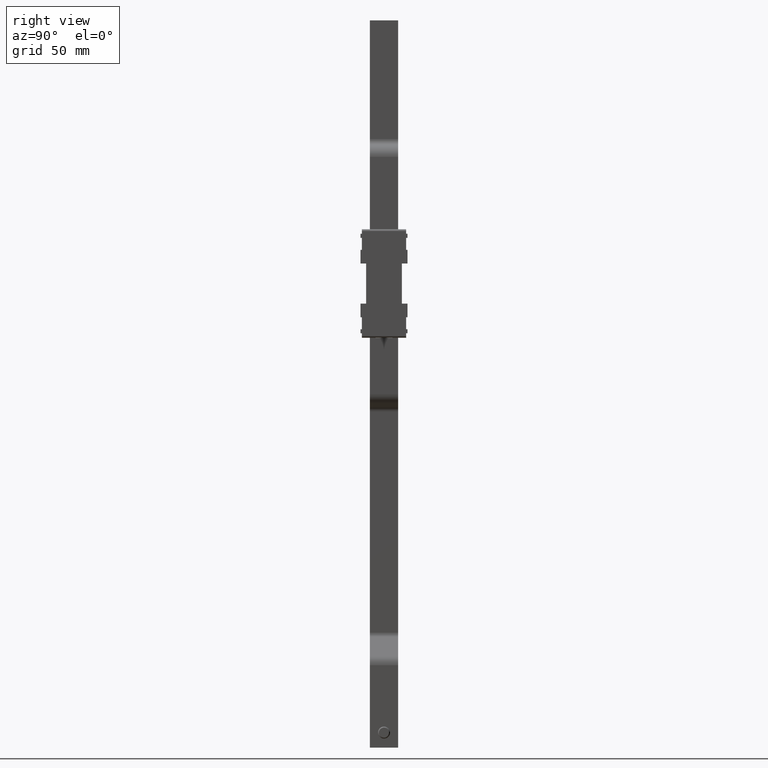
[diagram: clean part render]
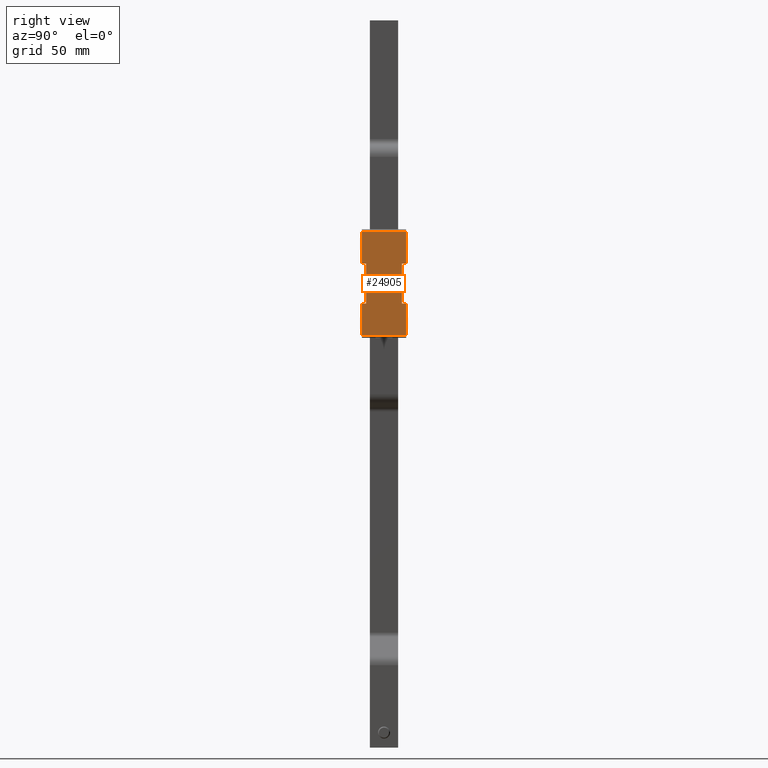
[diagram: same view with one face highlighted and labeled with its STEP entity id]
A machine part, right view. The second image highlights one B-rep face of the part: STEP entity #24905.
In plain terms, the highlighted face is a freeform B-spline surface patch.
Its self-contained STEP definition (entity closure, byte-faithful):
#22180=CARTESIAN_POINT('',(13.500000641205800,11.000000522472080,10.000000474974801));
#22181=VERTEX_POINT('',#22180);
#22187=CARTESIAN_POINT('',(13.500000641205800,8.900000422727320,10.000000474974801));
#22188=VERTEX_POINT('',#22187);
#22189=CARTESIAN_POINT('',(13.500000641205800,8.900000422727320,10.000000474974801));
#22190=CARTESIAN_POINT('',(13.500000641205800,11.000000522472080,10.000000474974801));
#22191=QUASI_UNIFORM_CURVE('',1,(#22189,#22190),.UNSPECIFIED.,.F.,.U.);
#22192=EDGE_CURVE('',#22188,#22181,#22191,.T.);
#22268=CARTESIAN_POINT('',(13.500000641205800,8.900000422727320,-10.000000474974801));
#22269=VERTEX_POINT('',#22268);
#22275=CARTESIAN_POINT('',(13.500000641205800,11.000000522472060,-10.000000474974801));
#22276=VERTEX_POINT('',#22275);
#22277=CARTESIAN_POINT('',(13.500000641205800,8.900000422727320,-10.000000474974801));
#22278=CARTESIAN_POINT('',(13.500000641205800,11.000000522472060,-10.000000474974801));
#22279=QUASI_UNIFORM_CURVE('',1,(#22277,#22278),.UNSPECIFIED.,.F.,.U.);
#22280=EDGE_CURVE('',#22269,#22276,#22279,.T.);
#23840=CARTESIAN_POINT('',(13.500000641205800,-8.900000422727320,10.000000474974801));
#23841=VERTEX_POINT('',#23840);
#23847=CARTESIAN_POINT('',(13.500000641205800,-11.000000522472080,10.000000474974801));
#23848=VERTEX_POINT('',#23847);
#23849=CARTESIAN_POINT('',(13.500000641205800,-8.900000422727320,10.000000474974801));
#23850=CARTESIAN_POINT('',(13.500000641205800,-11.000000522472080,10.000000474974801));
#23851=QUASI_UNIFORM_CURVE('',1,(#23849,#23850),.UNSPECIFIED.,.F.,.U.);
#23852=EDGE_CURVE('',#23841,#23848,#23851,.T.);
#23934=CARTESIAN_POINT('',(13.500000641205800,-11.000000522472080,-10.000000474974801));
#23935=VERTEX_POINT('',#23934);
#23941=CARTESIAN_POINT('',(13.500000641205800,-8.900000422727320,-10.000000474974801));
#23942=VERTEX_POINT('',#23941);
#23943=CARTESIAN_POINT('',(13.500000641205800,-8.900000422727320,-10.000000474974801));
#23944=CARTESIAN_POINT('',(13.500000641205800,-11.000000522472080,-10.000000474974801));
#23945=QUASI_UNIFORM_CURVE('',1,(#23943,#23944),.UNSPECIFIED.,.F.,.U.);
#23946=EDGE_CURVE('',#23942,#23935,#23945,.T.);
#24448=CARTESIAN_POINT('',(13.500000641205800,-11.000000522471961,26.000001234933951));
#24449=VERTEX_POINT('',#24448);
#24465=CARTESIAN_POINT('',(13.500000641205800,11.000000522472080,26.000001234933951));
#24466=VERTEX_POINT('',#24465);
#24467=CARTESIAN_POINT('',(13.500000641205800,11.000000522472080,26.000001234933951));
#24468=CARTESIAN_POINT('',(13.500000641205800,-11.000000522471961,26.000001234933951));
#24469=QUASI_UNIFORM_CURVE('',1,(#24467,#24468),.UNSPECIFIED.,.F.,.U.);
#24470=EDGE_CURVE('',#24466,#24449,#24469,.T.);
#24511=CARTESIAN_POINT('',(13.500000641205840,-11.000000522471961,-26.000001234933400));
#24512=VERTEX_POINT('',#24511);
#24533=CARTESIAN_POINT('',(13.500000641205840,11.000000522472080,-26.000001234933400));
#24534=VERTEX_POINT('',#24533);
#24548=CARTESIAN_POINT('',(13.500000641205840,11.000000522472080,-26.000001234933400));
#24549=CARTESIAN_POINT('',(13.500000641205840,-11.000000522471961,-26.000001234933400));
#24550=QUASI_UNIFORM_CURVE('',1,(#24548,#24549),.UNSPECIFIED.,.F.,.U.);
#24551=EDGE_CURVE('',#24534,#24512,#24550,.T.);
#24731=CARTESIAN_POINT('',(13.500000641205800,-11.000000522472080,10.000000474974801));
#24732=CARTESIAN_POINT('',(13.500000641205800,-11.000000522471961,26.000001234933951));
#24733=QUASI_UNIFORM_CURVE('',1,(#24731,#24732),.UNSPECIFIED.,.F.,.U.);
#24734=EDGE_CURVE('',#23848,#24449,#24733,.T.);
#24783=CARTESIAN_POINT('',(13.500000641205840,-11.000000522471961,-26.000001234933400));
#24784=CARTESIAN_POINT('',(13.500000641205800,-11.000000522472080,-10.000000474974801));
#24785=QUASI_UNIFORM_CURVE('',1,(#24783,#24784),.UNSPECIFIED.,.F.,.U.);
#24786=EDGE_CURVE('',#24512,#23935,#24785,.T.);
#24851=CARTESIAN_POINT('',(13.500000641205800,-8.900000422727320,10.000000474974801));
#24852=CARTESIAN_POINT('',(13.500000641205800,-8.900000422727320,-10.000000474974801));
#24853=QUASI_UNIFORM_CURVE('',1,(#24851,#24852),.UNSPECIFIED.,.F.,.U.);
#24854=EDGE_CURVE('',#23841,#23942,#24853,.T.);
#24874=CARTESIAN_POINT('',(13.500000641205800,-12.098901151587580,28.597402233795361));
#24875=CARTESIAN_POINT('',(13.500000641205800,-12.098901151587580,-28.597402698711068));
#24876=CARTESIAN_POINT('',(13.500000641205800,12.098901151587580,28.597402233795361));
#24877=CARTESIAN_POINT('',(13.500000641205800,12.098901151587580,-28.597402698711068));
#24878=B_SPLINE_SURFACE_WITH_KNOTS('',1,1,((#24874,#24876),(#24875,#24877)),.UNSPECIFIED.,.F.,.F.,.U.,(2,2),(2,2),(0.0,57.194804932506429),(0.0,24.197802303175159),.UNSPECIFIED.);
#24879=CARTESIAN_POINT('',(13.500000641205800,8.900000422727320,10.000000474974801));
#24880=CARTESIAN_POINT('',(13.500000641205800,8.900000422727320,-10.000000474974801));
#24881=QUASI_UNIFORM_CURVE('',1,(#24879,#24880),.UNSPECIFIED.,.F.,.U.);
#24882=EDGE_CURVE('',#22188,#22269,#24881,.T.);
#24883=ORIENTED_EDGE('',*,*,#24882,.F.);
#24884=ORIENTED_EDGE('',*,*,#22192,.T.);
#24885=CARTESIAN_POINT('',(13.500000641205800,11.000000522472080,10.000000474974801));
#24886=CARTESIAN_POINT('',(13.500000641205800,11.000000522472080,26.000001234933951));
#24887=QUASI_UNIFORM_CURVE('',1,(#24885,#24886),.UNSPECIFIED.,.F.,.U.);
#24888=EDGE_CURVE('',#22181,#24466,#24887,.T.);
#24889=ORIENTED_EDGE('',*,*,#24888,.T.);
#24890=ORIENTED_EDGE('',*,*,#24470,.T.);
#24891=ORIENTED_EDGE('',*,*,#24734,.F.);
#24892=ORIENTED_EDGE('',*,*,#23852,.F.);
#24893=ORIENTED_EDGE('',*,*,#24854,.T.);
#24894=ORIENTED_EDGE('',*,*,#23946,.T.);
#24895=ORIENTED_EDGE('',*,*,#24786,.F.);
#24896=ORIENTED_EDGE('',*,*,#24551,.F.);
#24897=CARTESIAN_POINT('',(13.500000641205840,11.000000522472080,-26.000001234933400));
#24898=CARTESIAN_POINT('',(13.500000641205800,11.000000522472060,-10.000000474974801));
#24899=QUASI_UNIFORM_CURVE('',1,(#24897,#24898),.UNSPECIFIED.,.F.,.U.);
#24900=EDGE_CURVE('',#24534,#22276,#24899,.T.);
#24901=ORIENTED_EDGE('',*,*,#24900,.T.);
#24902=ORIENTED_EDGE('',*,*,#22280,.F.);
#24903=EDGE_LOOP('',(#24883,#24884,#24889,#24890,#24891,#24892,#24893,#24894,#24895,#24896,#24901,#24902));
#24904=FACE_OUTER_BOUND('',#24903,.T.);
#24905=ADVANCED_FACE('',(#24904),#24878,.T.);